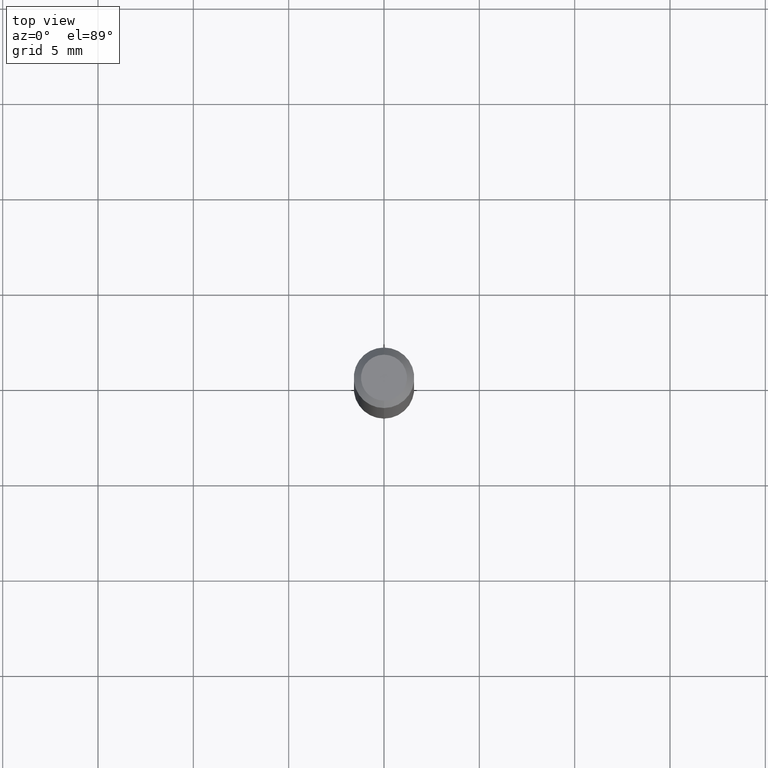
[diagram: clean part render]
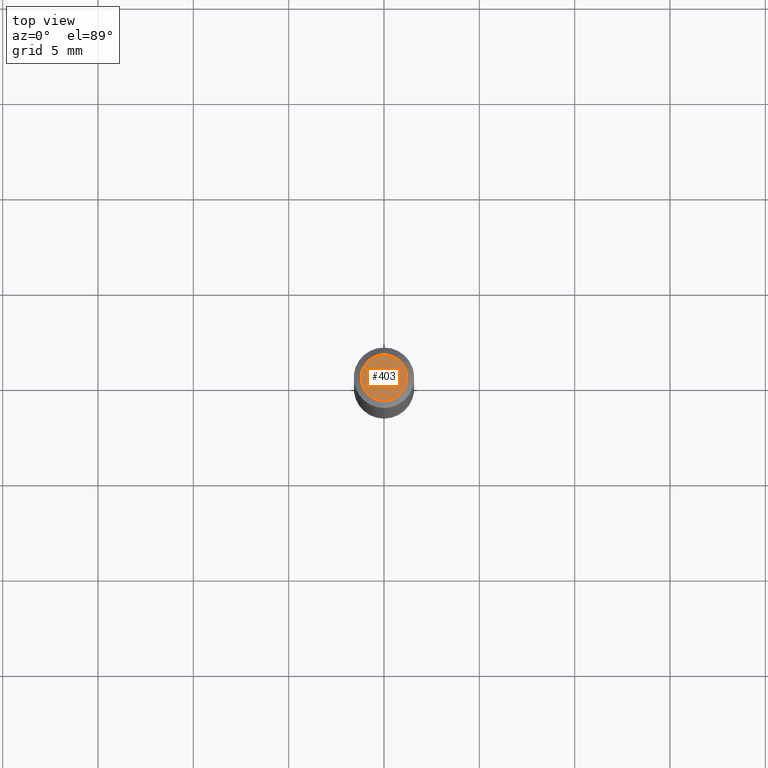
[diagram: same view with one face highlighted and labeled with its STEP entity id]
A machine part, top view. The second image highlights one B-rep face of the part: STEP entity #403.
In plain terms, the highlighted planar face has unit normal (0, -0, -1).
Its self-contained STEP definition (entity closure, byte-faithful):
#76 = CIRCLE ( 'NONE', #483, 0.04749999999999999362 ) ;
#95 = CARTESIAN_POINT ( 'NONE',  ( -5.856630421576116268E-45, 8.361618966837089108E-31, 2.394876782193117197E-16 ) ) ;
#109 = CARTESIAN_POINT ( 'NONE',  ( 3.840629472727447874E-16, 0.04749999999999999362, 7.364327909283752044E-17 ) ) ;
#119 = EDGE_CURVE ( 'NONE', #479, #177, #76, .T. ) ;
#140 = CARTESIAN_POINT ( 'NONE',  ( 3.316907271900976096E-16, 0.04749999999999999362, -4.610056001681835172E-17 ) ) ;
#151 = DIRECTION ( 'NONE',  ( -6.982962677686266711E-15, -1.000000000000000000, 3.491461034241562650E-15 ) ) ;
#177 = VERTEX_POINT ( 'NONE', #109 ) ;
#224 = DIRECTION ( 'NONE',  ( 2.445482984812640021E-29, -3.491461034241563044E-15, -1.000000000000000000 ) ) ;
#258 = DIRECTION ( 'NONE',  ( -2.445482984812640302E-29, 3.491461034241563044E-15, 1.000000000000000000 ) ) ;
#279 = ORIENTED_EDGE ( 'NONE', *, *, #119, .T. ) ;
#301 = CARTESIAN_POINT ( 'NONE',  ( -5.856630421576116268E-45, 8.361618966837089108E-31, 2.394876782193117197E-16 ) ) ;
#339 = AXIS2_PLACEMENT_3D ( 'NONE', #140, #224, #434 ) ;
#346 = CIRCLE ( 'NONE', #485, 0.04749999999999999362 ) ;
#403 = ADVANCED_FACE ( 'NONE', ( #469 ), #501, .F. ) ;
#406 = EDGE_CURVE ( 'NONE', #177, #479, #346, .T. ) ;
#421 = DIRECTION ( 'NONE',  ( -2.445482984812640302E-29, 3.491461034241563044E-15, 1.000000000000000000 ) ) ;
#430 = EDGE_LOOP ( 'NONE', ( #443, #279 ) ) ;
#434 = DIRECTION ( 'NONE',  ( 6.982962677686265922E-15, 1.000000000000000000, -3.491461034241563044E-15 ) ) ;
#443 = ORIENTED_EDGE ( 'NONE', *, *, #406, .T. ) ;
#469 = FACE_OUTER_BOUND ( 'NONE', #430, .T. ) ;
#472 = DIRECTION ( 'NONE',  ( -6.982962677686266711E-15, -1.000000000000000000, 3.491461034241562650E-15 ) ) ;
#479 = VERTEX_POINT ( 'NONE', #507 ) ;
#483 = AXIS2_PLACEMENT_3D ( 'NONE', #95, #421, #151 ) ;
#485 = AXIS2_PLACEMENT_3D ( 'NONE', #301, #258, #472 ) ;
#501 = PLANE ( 'NONE',  #339 ) ;
#507 = CARTESIAN_POINT ( 'NONE',  ( -3.773273898774340269E-16, -0.04749999999999999362, 4.053320773457859189E-16 ) ) ;